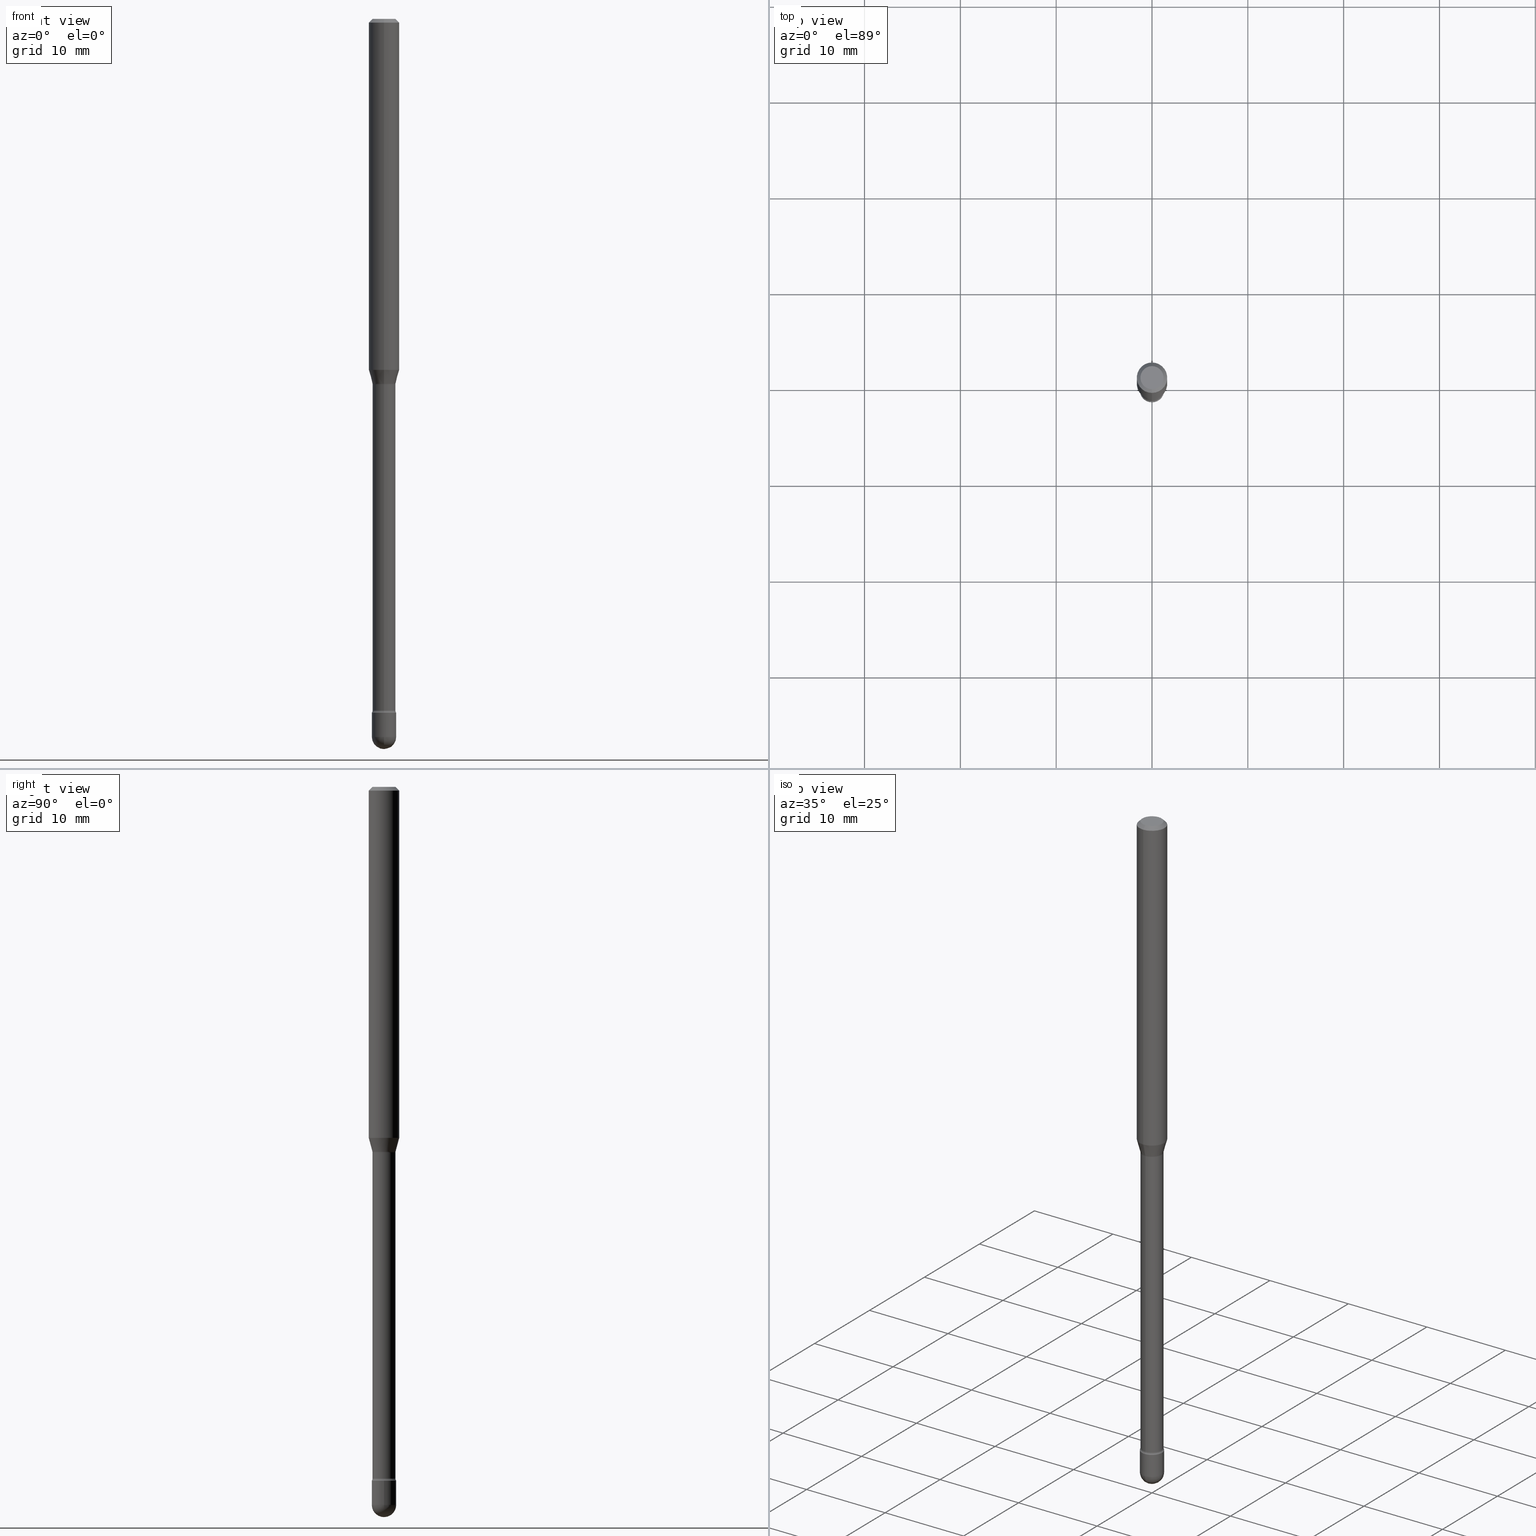
[diagram: canonical four-view strip — front | top / right | iso, engineering-drawing reading convention]
A machine part, canonical four-view strip (front | top / right | iso — engineering-drawing reading convention). The complete STEP part file that produces these views, byte-faithful:
ISO-10303-21;
HEADER;
FILE_DESCRIPTION (( 'STEP AP203' ),
    '1' );
FILE_NAME ('03936.STEP',
    '2024-04-09T21:17:18',
    ( '' ),
    ( '' ),
    'SwSTEP 2.0',
    'SolidWorks 2023',
    '' );
FILE_SCHEMA (( 'CONFIG_CONTROL_DESIGN' ));
ENDSEC;

DATA;
#1 = EDGE_CURVE ( 'NONE', #282, #555, #247, .T. ) ;
#2 = DIRECTION ( 'NONE',  ( 1.000000000000000000, -7.105427357601001070E-15, 4.926316345616424299E-29 ) ) ;
#3 = APPROVAL_ROLE ( '' ) ;
#4 = VERTEX_POINT ( 'NONE', #163 ) ;
#5 = ADVANCED_FACE ( 'NONE', ( #501 ), #382, .T. ) ;
#6 = DIRECTION ( 'NONE',  ( 7.105427357601001859E-15, 1.000000000000000000, 0.000000000000000000 ) ) ;
#7 = PERSON_AND_ORGANIZATION_ROLE ( 'design_supplier' ) ;
#8 = ORIENTED_EDGE ( 'NONE', *, *, #117, .F. ) ;
#9 = CIRCLE ( 'NONE', #470, 0.04700000000000000705 ) ;
#10 =( LENGTH_UNIT ( ) NAMED_UNIT ( * ) SI_UNIT ( $, .METRE. ) );
#11 = CARTESIAN_POINT ( 'NONE',  ( 7.214132978246153185E-29, -1.029986994958728126E-14, -2.950000000000000622 ) ) ;
#12 = EDGE_LOOP ( 'NONE', ( #481, #254, #491, #104 ) ) ;
#13 = ADVANCED_FACE ( 'NONE', ( #409 ), #548, .T. ) ;
#14 = PERSON_AND_ORGANIZATION ( #441, #261 ) ;
#15 = DIRECTION ( 'NONE',  ( -2.445468806185136877E-29, 3.491481338843145188E-15, 1.000000000000000000 ) ) ;
#16 = DIRECTION ( 'NONE',  ( -2.445421076024140334E-29, 3.491549691150324233E-15, 1.000000000000000000 ) ) ;
#17 = SPHERICAL_SURFACE ( 'NONE', #562, 0.04999999999999987094 ) ;
#18 = ORIENTED_EDGE ( 'NONE', *, *, #169, .T. ) ;
#19 = FACE_OUTER_BOUND ( 'NONE', #511, .T. ) ;
#20 = CC_DESIGN_PERSON_AND_ORGANIZATION_ASSIGNMENT ( #377, #372, ( #545 ) ) ;
#21 = CONICAL_SURFACE ( 'NONE', #138, 0.06250000000000000000, 0.7853981633974483900 ) ;
#22 = FACE_OUTER_BOUND ( 'NONE', #337, .T. ) ;
#23 = AXIS2_PLACEMENT_3D ( 'NONE', #165, #73, #342 ) ;
#24 = DIRECTION ( 'NONE',  ( 1.000000000000000000, -6.982962677686255667E-15, 0.000000000000000000 ) ) ;
#25 = CARTESIAN_POINT ( 'NONE',  ( 3.491481338843849247E-16, 0.04999999999998962913, -2.950000000000000622 ) ) ;
#26 = DIRECTION ( 'NONE',  ( -2.445421076024140334E-29, 3.491549691150324233E-15, 1.000000000000000000 ) ) ;
#27 = CARTESIAN_POINT ( 'NONE',  ( 0.000000000000000000, 0.000000000000000000, 0.000000000000000000 ) ) ;
#28 = CARTESIAN_POINT ( 'NONE',  ( 6.969586097627641094E-29, -9.950721815702966350E-15, -2.850000000000000533 ) ) ;
#29 = PERSON_AND_ORGANIZATION ( #441, #261 ) ;
#30 = ORIENTED_EDGE ( 'NONE', *, *, #1, .F. ) ;
#31 = CIRCLE ( 'NONE', #476, 0.05000000000000000278 ) ;
#32 = EDGE_CURVE ( 'NONE', #211, #385, #359, .T. ) ;
#33 = ORIENTED_EDGE ( 'NONE', *, *, #524, .T. ) ;
#34 = CC_DESIGN_DATE_AND_TIME_ASSIGNMENT ( #551, #113, ( #545 ) ) ;
#35 = ORIENTED_EDGE ( 'NONE', *, *, #133, .T. ) ;
#36 = VECTOR ( 'NONE', #453, 39.37007874015748143 ) ;
#37 = ADVANCED_FACE ( 'NONE', ( #495 ), #17, .T. ) ;
#38 = DATE_TIME_ROLE ( 'classification_date' ) ;
#39 = CARTESIAN_POINT ( 'NONE',  ( 6.947576878371974031E-29, -9.919298483653379286E-15, -2.841000000000000636 ) ) ;
#40 = ORIENTED_EDGE ( 'NONE', *, *, #245, .F. ) ;
#41 = AXIS2_PLACEMENT_3D ( 'NONE', #341, #253, #460 ) ;
#42 = AXIS2_PLACEMENT_3D ( 'NONE', #181, #528, #136 ) ;
#43 = CARTESIAN_POINT ( 'NONE',  ( 3.491481338843830018E-16, 0.04999999999999005240, -2.850000000000000533 ) ) ;
#44 = DIRECTION ( 'NONE',  ( -6.982962677686265922E-15, -1.000000000000000000, 3.491549691150324233E-15 ) ) ;
#45 = EDGE_CURVE ( 'NONE', #282, #251, #543, .T. ) ;
#46 = CARTESIAN_POINT ( 'NONE',  ( 3.668131614036230645E-31, -5.237324536725515192E-17, -0.01500000000000008271 ) ) ;
#47 = LINE ( 'NONE', #443, #556 ) ;
#48 = DIRECTION ( 'NONE',  ( -6.982962677686265133E-15, -1.000000000000000000, 0.000000000000000000 ) ) ;
#49 = CARTESIAN_POINT ( 'NONE',  ( 7.338544334278357981E-29, -1.047138239953157018E-14, -3.000000000000000444 ) ) ;
#50 = EDGE_LOOP ( 'NONE', ( #410, #383, #516, #183 ) ) ;
#51 = LINE ( 'NONE', #190, #36 ) ;
#52 = VECTOR ( 'NONE', #412, 39.37007874015748143 ) ;
#53 = AXIS2_PLACEMENT_3D ( 'NONE', #191, #407, #24 ) ;
#54 = DIRECTION ( 'NONE',  ( 2.445421076024140334E-29, -3.491549691150324233E-15, -1.000000000000000000 ) ) ;
#55 = DIRECTION ( 'NONE',  ( -2.445468806185136597E-29, 3.491481338843145583E-15, 1.000000000000000000 ) ) ;
#56 = ORIENTED_EDGE ( 'NONE', *, *, #497, .T. ) ;
#57 = ADVANCED_FACE ( 'NONE', ( #22 ), #498, .T. ) ;
#58 = DIRECTION ( 'NONE',  ( -2.445468806185136597E-29, 3.491481338843145583E-15, 1.000000000000000000 ) ) ;
#59 = CARTESIAN_POINT ( 'NONE',  ( -3.281992458512177725E-16, -0.04700000000000524591, -1.501974787463810967 ) ) ;
#60 = CARTESIAN_POINT ( 'NONE',  ( 3.526671860661072103E-29, -5.035349603635358334E-15, -1.442153212482682578 ) ) ;
#61 = CARTESIAN_POINT ( 'NONE',  ( -1.169113584055446105E-44, 1.669184350826100908E-30, 4.780733988912460139E-16 ) ) ;
#62 = AXIS2_PLACEMENT_3D ( 'NONE', #490, #281, #448 ) ;
#63 = CARTESIAN_POINT ( 'NONE',  ( -1.169113584055446105E-44, 1.669184350826100908E-30, 4.780733988912460139E-16 ) ) ;
#64 = CIRCLE ( 'NONE', #522, 0.01500000000000001853 ) ;
#65 = ORIENTED_EDGE ( 'NONE', *, *, #262, .T. ) ;
#66 = ADVANCED_FACE ( 'NONE', ( #215 ), #559, .F. ) ;
#67 = DIRECTION ( 'NONE',  ( 4.937700262164548042E-15, 0.7071067811865451302, -0.7071067811865499042 ) ) ;
#68 = DIRECTION ( 'NONE',  ( -2.438088387897960049E-29, 3.491481338843145188E-15, 1.000000000000000000 ) ) ;
#69 = CARTESIAN_POINT ( 'NONE',  ( 7.214132978246153185E-29, -1.029986994958728126E-14, -2.950000000000000622 ) ) ;
#70 = CALENDAR_DATE ( 2024, 9, 4 ) ;
#71 = ORIENTED_EDGE ( 'NONE', *, *, #303, .T. ) ;
#72 = DIRECTION ( 'NONE',  ( -6.982962677686265922E-15, -1.000000000000000000, 3.491549691150325021E-15 ) ) ;
#73 = DIRECTION ( 'NONE',  ( -2.445421076024140334E-29, 3.491549691150324233E-15, 1.000000000000000000 ) ) ;
#74 = ORIENTED_EDGE ( 'NONE', *, *, #420, .T. ) ;
#75 = ORIENTED_EDGE ( 'NONE', *, *, #508, .F. ) ;
#76 = ADVANCED_FACE ( 'NONE', ( #353 ), #487, .T. ) ;
#77 = ORIENTED_EDGE ( 'NONE', *, *, #364, .F. ) ;
#78 = CIRCLE ( 'NONE', #159, 0.04999999999999987094 ) ;
#79 = EDGE_CURVE ( 'NONE', #555, #277, #232, .T. ) ;
#80 = AXIS2_PLACEMENT_3D ( 'NONE', #496, #97, #275 ) ;
#81 = SECURITY_CLASSIFICATION ( '', '', #124 ) ;
#82 = PERSON_AND_ORGANIZATION_ROLE ( 'classification_officer' ) ;
#83 = DIRECTION ( 'NONE',  ( -2.445421076024140334E-29, 3.491549691150324233E-15, 1.000000000000000000 ) ) ;
#84 = ORIENTED_EDGE ( 'NONE', *, *, #264, .T. ) ;
#85 = CARTESIAN_POINT ( 'NONE',  ( 2.023205780527082896E-45, -2.889367155576668613E-31, -8.274378533695437826E-17 ) ) ;
#86 = DIRECTION ( 'NONE',  ( -6.982962677686265922E-15, -1.000000000000000000, 3.491549691150324233E-15 ) ) ;
#87 = AXIS2_PLACEMENT_3D ( 'NONE', #115, #450, #454 ) ;
#88 = AXIS2_PLACEMENT_3D ( 'NONE', #483, #329, #241 ) ;
#89 = DIRECTION ( 'NONE',  ( -2.445468806185136597E-29, 3.491481338843145583E-15, 1.000000000000000000 ) ) ;
#90 = CC_DESIGN_DATE_AND_TIME_ASSIGNMENT ( #436, #38, ( #81 ) ) ;
#91 = DIRECTION ( 'NONE',  ( -2.445421076024140334E-29, 3.491549691150324233E-15, 1.000000000000000000 ) ) ;
#92 = CARTESIAN_POINT ( 'NONE',  ( 3.668131614036230645E-31, -5.237324536725515192E-17, -0.01500000000000008271 ) ) ;
#93 = CARTESIAN_POINT ( 'NONE',  ( 6.969586097627641094E-29, -9.950721815702966350E-15, -2.850000000000000533 ) ) ;
#94 = ORIENTED_EDGE ( 'NONE', *, *, #524, .F. ) ;
#95 = DATE_AND_TIME ( #482, #168 ) ;
#96 = EDGE_CURVE ( 'NONE', #189, #4, #47, .T. ) ;
#97 = DIRECTION ( 'NONE',  ( -2.445421076024140334E-29, 3.491549691150324233E-15, 1.000000000000000000 ) ) ;
#98 = CARTESIAN_POINT ( 'NONE',  ( 3.663466977704329746E-29, -5.230664411929969971E-15, -1.498092501787273267 ) ) ;
#99 = ADVANCED_FACE ( 'NONE', ( #235 ), #348, .T. ) ;
#100 = AXIS2_PLACEMENT_3D ( 'NONE', #566, #173, #270 ) ;
#101 = CIRCLE ( 'NONE', #42, 0.01500000000000001853 ) ;
#102 = PERSON_AND_ORGANIZATION_ROLE ( 'design_owner' ) ;
#103 = CARTESIAN_POINT ( 'NONE',  ( -4.329436860164802286E-16, -0.06200000000001008871, -2.841000000000000636 ) ) ;
#104 = ORIENTED_EDGE ( 'NONE', *, *, #283, .F. ) ;
#105 = DIRECTION ( 'NONE',  ( -6.982962677686265133E-15, -1.000000000000000000, 3.491549691150322655E-15 ) ) ;
#106 = CARTESIAN_POINT ( 'NONE',  ( 3.339550858073170996E-16, 0.04699999999999476125, -1.501974787463811412 ) ) ;
#107 = ORIENTED_EDGE ( 'NONE', *, *, #425, .F. ) ;
#108 = CARTESIAN_POINT ( 'NONE',  ( -1.169113584055446105E-44, 1.669184350826100908E-30, 4.780733988912460139E-16 ) ) ;
#109 = VERTEX_POINT ( 'NONE', #182 ) ;
#110 = EDGE_CURVE ( 'NONE', #240, #376, #475, .T. ) ;
#111 = FACE_OUTER_BOUND ( 'NONE', #12, .T. ) ;
#112 = CIRCLE ( 'NONE', #493, 0.06250000000000000000 ) ;
#113 = DATE_TIME_ROLE ( 'creation_date' ) ;
#114 = ORIENTED_EDGE ( 'NONE', *, *, #45, .T. ) ;
#115 = CARTESIAN_POINT ( 'NONE',  ( 6.947441276984582983E-29, -9.919492672558074066E-15, -2.841000000000000636 ) ) ;
#116 = ORIENTED_EDGE ( 'NONE', *, *, #468, .T. ) ;
#117 = EDGE_CURVE ( 'NONE', #555, #259, #422, .T. ) ;
#118 = CIRCLE ( 'NONE', #62, 0.04999999999999987094 ) ;
#119 = CC_DESIGN_APPROVAL ( #531, ( #545 ) ) ;
#120 = ORIENTED_EDGE ( 'NONE', *, *, #164, .T. ) ;
#121 = EDGE_CURVE ( 'NONE', #300, #419, #492, .T. ) ;
#122 = ORIENTED_EDGE ( 'NONE', *, *, #375, .T. ) ;
#123 = EDGE_CURVE ( 'NONE', #282, #290, #149, .T. ) ;
#124 = SECURITY_CLASSIFICATION_LEVEL ( 'unclassified' ) ;
#125 = ORIENTED_EDGE ( 'NONE', *, *, #238, .T. ) ;
#126 = VECTOR ( 'NONE', #237, 39.37007874015748143 ) ;
#127 = ORIENTED_EDGE ( 'NONE', *, *, #364, .T. ) ;
#128 = FACE_OUTER_BOUND ( 'NONE', #421, .T. ) ;
#129 = DIRECTION ( 'NONE',  ( -2.445421076024140334E-29, 3.491549691150324233E-15, 1.000000000000000000 ) ) ;
#130 = ORIENTED_EDGE ( 'NONE', *, *, #464, .F. ) ;
#131 = LINE ( 'NONE', #451, #469 ) ;
#132 = PERSON_AND_ORGANIZATION ( #441, #261 ) ;
#133 = EDGE_CURVE ( 'NONE', #419, #434, #534, .T. ) ;
#134 = DIRECTION ( 'NONE',  ( 6.982962677686265922E-15, 1.000000000000000000, -3.491549691150324233E-15 ) ) ;
#135 = SHAPE_DEFINITION_REPRESENTATION ( #553, #346 ) ;
#136 = DIRECTION ( 'NONE',  ( 7.105427357600998703E-15, 1.000000000000000000, 0.000000000000000000 ) ) ;
#137 = EDGE_CURVE ( 'NONE', #513, #265, #370, .T. ) ;
#138 = AXIS2_PLACEMENT_3D ( 'NONE', #399, #538, #318 ) ;
#139 = CIRCLE ( 'NONE', #325, 0.04999999999999999584 ) ;
#140 = CARTESIAN_POINT ( 'NONE',  ( 3.840629472727447874E-16, 0.04749999999999999362, -2.485923956665947867E-16 ) ) ;
#141 = CARTESIAN_POINT ( 'NONE',  ( -0.04999999999999999584, 3.552713678800500634E-16, -2.459467545127452961E-30 ) ) ;
#142 = ORIENTED_EDGE ( 'NONE', *, *, #431, .T. ) ;
#143 = LINE ( 'NONE', #146, #369 ) ;
#144 = LINE ( 'NONE', #320, #126 ) ;
#145 = EDGE_CURVE ( 'NONE', #240, #211, #143, .T. ) ;
#146 = CARTESIAN_POINT ( 'NONE',  ( -3.317683261006645096E-16, -0.04751111260566922428, -1.498092501787273045 ) ) ;
#147 = ORIENTED_EDGE ( 'NONE', *, *, #245, .T. ) ;
#148 = CARTESIAN_POINT ( 'NONE',  ( -3.317683261006645096E-16, -0.04751111260566922428, -1.498092501787273045 ) ) ;
#149 = CIRCLE ( 'NONE', #312, 0.01500000000000001159 ) ;
#150 = AXIS2_PLACEMENT_3D ( 'NONE', #27, #239, #500 ) ;
#151 = PERSON_AND_ORGANIZATION ( #441, #261 ) ;
#152 = DIRECTION ( 'NONE',  ( 1.000000000000000000, -6.982962677686265922E-15, 4.876176775795935793E-29 ) ) ;
#153 = CYLINDRICAL_SURFACE ( 'NONE', #233, 0.06250000000000000000 ) ;
#154 = COORDINATED_UNIVERSAL_TIME_OFFSET ( 5, 0, .BEHIND. ) ;
#155 = CARTESIAN_POINT ( 'NONE',  ( 4.440892098500980163E-16, 0.06249999999999499706, -1.442153212482682800 ) ) ;
#156 = APPLICATION_PROTOCOL_DEFINITION ( 'international standard', 'config_control_design', 1994, #209 ) ;
#157 = DIRECTION ( 'NONE',  ( -6.982962677686265133E-15, -1.000000000000000000, 0.000000000000000000 ) ) ;
#158 = DIRECTION ( 'NONE',  ( -6.982962677686265922E-15, -1.000000000000000000, 5.749913744050246675E-15 ) ) ;
#159 = AXIS2_PLACEMENT_3D ( 'NONE', #248, #499, #380 ) ;
#160 = ORIENTED_EDGE ( 'NONE', *, *, #176, .T. ) ;
#161 = AXIS2_PLACEMENT_3D ( 'NONE', #401, #198, #544 ) ;
#162 = CARTESIAN_POINT ( 'NONE',  ( -4.329436860165117337E-16, -0.06200000000000524536, -1.501974787463810967 ) ) ;
#163 = CARTESIAN_POINT ( 'NONE',  ( 0.05000000000000000278, -1.029986994958727969E-14, -2.850000000000000533 ) ) ;
#164 = EDGE_CURVE ( 'NONE', #185, #246, #118, .T. ) ;
#165 = CARTESIAN_POINT ( 'NONE',  ( 3.672960800920882505E-29, -5.244219605284844182E-15, -1.501974787463811190 ) ) ;
#166 = AXIS2_PLACEMENT_3D ( 'NONE', #11, #58, #438 ) ;
#167 = DIMENSIONAL_EXPONENTS ( 1.000000000000000000, 0.000000000000000000, 0.000000000000000000, 0.000000000000000000, 0.000000000000000000, 0.000000000000000000, 0.000000000000000000 ) ;
#168 = LOCAL_TIME ( 17, 17, 18.00000000000000000, #180 ) ;
#169 = EDGE_CURVE ( 'NONE', #4, #434, #199, .T. ) ;
#170 = CLOSED_SHELL ( 'NONE', ( #309, #57, #324, #212, #472, #388, #99, #5, #486, #66, #515, #218, #423, #396 ) ) ;
#171 = AXIS2_PLACEMENT_3D ( 'NONE', #523, #83, #272 ) ;
#172 = DIRECTION ( 'NONE',  ( -4.851104656540964275E-15, -0.7071067811865500152, -0.7071067811865450192 ) ) ;
#173 = DIRECTION ( 'NONE',  ( -2.445421076024140334E-29, 3.491549691150324233E-15, 1.000000000000000000 ) ) ;
#174 = CARTESIAN_POINT ( 'NONE',  ( 3.673032490419300829E-29, -5.244116941842796689E-15, -1.501974787463811190 ) ) ;
#175 = EDGE_LOOP ( 'NONE', ( #332, #84, #347, #504 ) ) ;
#176 = EDGE_CURVE ( 'NONE', #189, #300, #267, .T. ) ;
#177 = ORIENTED_EDGE ( 'NONE', *, *, #164, .F. ) ;
#178 =( NAMED_UNIT ( * ) PLANE_ANGLE_UNIT ( ) SI_UNIT ( $, .RADIAN. ) );
#179 = DIRECTION ( 'NONE',  ( 2.445421076024140054E-29, -3.491549691150324233E-15, -1.000000000000000000 ) ) ;
#180 = COORDINATED_UNIVERSAL_TIME_OFFSET ( 5, 0, .BEHIND. ) ;
#181 = CARTESIAN_POINT ( 'NONE',  ( 4.405364961712988434E-16, 0.06199999999999476763, -1.501974787463811412 ) ) ;
#182 = CARTESIAN_POINT ( 'NONE',  ( -4.364351673553912750E-16, -0.06250000000000005551, -0.01499999999999986587 ) ) ;
#183 = ORIENTED_EDGE ( 'NONE', *, *, #238, .F. ) ;
#184 = COORDINATED_UNIVERSAL_TIME_OFFSET ( 5, 0, .BEHIND. ) ;
#185 = VERTEX_POINT ( 'NONE', #49 ) ;
#186 = AXIS2_PLACEMENT_3D ( 'NONE', #435, #2, #6 ) ;
#187 = ORIENTED_EDGE ( 'NONE', *, *, #32, .F. ) ;
#188 = DIRECTION ( 'NONE',  ( 1.000000000000000000, -6.982962677686254878E-15, 0.000000000000000000 ) ) ;
#189 = VERTEX_POINT ( 'NONE', #526 ) ;
#190 = CARTESIAN_POINT ( 'NONE',  ( -4.364351673553916201E-16, -0.06250000000000000000, 6.962952545881414017E-16 ) ) ;
#191 = CARTESIAN_POINT ( 'NONE',  ( 7.214132978246153185E-29, -1.029986994958728126E-14, -2.950000000000000622 ) ) ;
#192 = APPROVAL_DATE_TIME ( #404, #204 ) ;
#193 = DIRECTION ( 'NONE',  ( -2.445421076024140334E-29, 3.491549691150324233E-15, 1.000000000000000000 ) ) ;
#194 = CARTESIAN_POINT ( 'NONE',  ( -0.05000000000000000278, -9.770024514765074187E-15, -2.850000000000000533 ) ) ;
#195 = APPLICATION_PROTOCOL_DEFINITION ( 'international standard', 'config_control_design', 1994, #489 ) ;
#196 = DIRECTION ( 'NONE',  ( -1.000000000000000000, 6.982962677686266711E-15, -4.883557194083112901E-29 ) ) ;
#197 = ORIENTED_EDGE ( 'NONE', *, *, #176, .F. ) ;
#198 = DIRECTION ( 'NONE',  ( -2.445421076024140334E-29, 3.491549691150324233E-15, 1.000000000000000000 ) ) ;
#199 = CIRCLE ( 'NONE', #512, 0.05000000000000000278 ) ;
#200 = FACE_OUTER_BOUND ( 'NONE', #227, .T. ) ;
#201 = DIRECTION ( 'NONE',  ( -1.000000000000000000, 6.982962677686265922E-15, -4.883557194083112340E-29 ) ) ;
#202 = AXIS2_PLACEMENT_3D ( 'NONE', #61, #16, #105 ) ;
#203 = ORIENTED_EDGE ( 'NONE', *, *, #560, .T. ) ;
#204 = APPROVAL ( #462, 'UNSPECIFIED' ) ;
#205 = CARTESIAN_POINT ( 'NONE',  ( 2.023205780527082896E-45, -2.889367155576668613E-31, -8.274378533695437826E-17 ) ) ;
#206 = CARTESIAN_POINT ( 'NONE',  ( -3.281992458511861195E-16, -0.04700000000001007538, -2.841000000000000636 ) ) ;
#207 = APPROVAL_DATE_TIME ( #418, #531 ) ;
#208 = DIRECTION ( 'NONE',  ( -6.982962677686265922E-15, -1.000000000000000000, 4.370956789862821150E-15 ) ) ;
#209 = APPLICATION_CONTEXT ( 'configuration controlled 3d designs of mechanical parts and assemblies' ) ;
#210 = AXIS2_PLACEMENT_3D ( 'NONE', #63, #455, #250 ) ;
#211 = VERTEX_POINT ( 'NONE', #351 ) ;
#212 = ADVANCED_FACE ( 'NONE', ( #361 ), #21, .T. ) ;
#213 = AXIS2_PLACEMENT_3D ( 'NONE', #46, #54, #314 ) ;
#214 = ORIENTED_EDGE ( 'NONE', *, *, #510, .F. ) ;
#215 = FACE_OUTER_BOUND ( 'NONE', #224, .T. ) ;
#216 = ORIENTED_EDGE ( 'NONE', *, *, #110, .F. ) ;
#217 = EDGE_LOOP ( 'NONE', ( #130, #74, #398, #424 ) ) ;
#218 = ADVANCED_FACE ( 'NONE', ( #266 ), #344, .F. ) ;
#219 = EDGE_LOOP ( 'NONE', ( #229, #120, #77, #445 ) ) ;
#220 = CARTESIAN_POINT ( 'NONE',  ( 3.446132268437187104E-16, 0.04699999999999023709, -2.841000000000000636 ) ) ;
#221 = CC_DESIGN_PERSON_AND_ORGANIZATION_ASSIGNMENT ( #151, #102, ( #463 ) ) ;
#222 = APPROVAL_STATUS ( 'not_yet_approved' ) ;
#223 = AXIS2_PLACEMENT_3D ( 'NONE', #306, #263, #427 ) ;
#224 = EDGE_LOOP ( 'NONE', ( #444, #71 ) ) ;
#225 =( CONVERSION_BASED_UNIT ( 'INCH', #429 ) LENGTH_UNIT ( ) NAMED_UNIT ( #167 ) );
#226 = DIRECTION ( 'NONE',  ( -6.982962677686265922E-15, -1.000000000000000000, 3.491549691150324233E-15 ) ) ;
#227 = EDGE_LOOP ( 'NONE', ( #339, #319, #214, #107 ) ) ;
#228 = DIRECTION ( 'NONE',  ( -2.445421076024140334E-29, 3.491549691150324233E-15, 1.000000000000000000 ) ) ;
#229 = ORIENTED_EDGE ( 'NONE', *, *, #262, .F. ) ;
#230 = APPROVAL ( #222, 'UNSPECIFIED' ) ;
#231 = DIRECTION ( 'NONE',  ( -2.445421076024140054E-29, 3.491549691150324233E-15, 1.000000000000000000 ) ) ;
#232 = LINE ( 'NONE', #392, #386 ) ;
#233 = AXIS2_PLACEMENT_3D ( 'NONE', #108, #286, #72 ) ;
#234 = CARTESIAN_POINT ( 'NONE',  ( 6.969450066668801213E-29, -9.950916619778426528E-15, -2.850000000000000533 ) ) ;
#235 = FACE_OUTER_BOUND ( 'NONE', #175, .T. ) ;
#236 = FACE_OUTER_BOUND ( 'NONE', #537, .T. ) ;
#237 = DIRECTION ( 'NONE',  ( -2.445421076024140334E-29, 3.491549691150324233E-15, 1.000000000000000000 ) ) ;
#238 = EDGE_CURVE ( 'NONE', #513, #355, #131, .T. ) ;
#239 = DIRECTION ( 'NONE',  ( 0.000000000000000000, 0.000000000000000000, 1.000000000000000000 ) ) ;
#240 = VERTEX_POINT ( 'NONE', #148 ) ;
#241 = DIRECTION ( 'NONE',  ( -6.982962677686265922E-15, -1.000000000000000000, 3.491549691150324233E-15 ) ) ;
#242 = CARTESIAN_POINT ( 'NONE',  ( -3.773273898774340269E-16, -0.04749999999999999362, 8.310482499268601786E-17 ) ) ;
#243 = CARTESIAN_POINT ( 'NONE',  ( -3.281992458512550462E-16, -0.04700000000000008338, 6.421762343753115033E-16 ) ) ;
#244 = CARTESIAN_POINT ( 'NONE',  ( 6.969450066668801213E-29, -9.950916619778426528E-15, -2.850000000000000533 ) ) ;
#245 = EDGE_CURVE ( 'NONE', #555, #282, #334, .T. ) ;
#246 = VERTEX_POINT ( 'NONE', #408 ) ;
#247 = CIRCLE ( 'NONE', #296, 0.04700000000000015971 ) ;
#248 = CARTESIAN_POINT ( 'NONE',  ( 7.214132978246153185E-29, -1.029986994958728126E-14, -2.950000000000000622 ) ) ;
#249 = CONICAL_SURFACE ( 'NONE', #213, 0.06250000000000000000, 0.7853981633974483900 ) ;
#250 = DIRECTION ( 'NONE',  ( -6.982962677686265133E-15, -1.000000000000000000, 3.491549691150322655E-15 ) ) ;
#251 = VERTEX_POINT ( 'NONE', #59 ) ;
#252 = EDGE_LOOP ( 'NONE', ( #298, #127, #116, #484, #94 ) ) ;
#253 = DIRECTION ( 'NONE',  ( -2.445421076024140334E-29, 3.491549691150324233E-15, 1.000000000000000000 ) ) ;
#254 = ORIENTED_EDGE ( 'NONE', *, *, #343, .T. ) ;
#255 = CARTESIAN_POINT ( 'NONE',  ( 3.908379845742406509E-16, 0.04751111260565876043, -1.498092501787273489 ) ) ;
#256 = AXIS2_PLACEMENT_3D ( 'NONE', #276, #55, #357 ) ;
#257 = ORIENTED_EDGE ( 'NONE', *, *, #79, .F. ) ;
#258 = PRODUCT_RELATED_PRODUCT_CATEGORY ( 'detail', '', ( #463 ) ) ;
#259 = VERTEX_POINT ( 'NONE', #365 ) ;
#260 = AXIS2_PLACEMENT_3D ( 'NONE', #60, #26, #208 ) ;
#261 = ORGANIZATION ( 'UNSPECIFIED', 'UNSPECIFIED', '' ) ;
#262 = EDGE_CURVE ( 'NONE', #185, #300, #78, .T. ) ;
#263 = DIRECTION ( 'NONE',  ( -2.445468806185136597E-29, 3.491481338843145583E-15, 1.000000000000000000 ) ) ;
#264 = EDGE_CURVE ( 'NONE', #376, #240, #297, .T. ) ;
#265 = VERTEX_POINT ( 'NONE', #242 ) ;
#266 = FACE_OUTER_BOUND ( 'NONE', #284, .T. ) ;
#267 = CIRCLE ( 'NONE', #166, 0.04999999999999999584 ) ;
#268 = CARTESIAN_POINT ( 'NONE',  ( 7.214132978246153185E-29, -1.029986994958728126E-14, -2.950000000000000622 ) ) ;
#269 = CONICAL_SURFACE ( 'NONE', #161, 0.04751111260566399236, 0.2617993877991497409 ) ;
#270 = DIRECTION ( 'NONE',  ( -6.982962677686265922E-15, -1.000000000000000000, 5.749913744050246675E-15 ) ) ;
#271 = CC_DESIGN_PERSON_AND_ORGANIZATION_ASSIGNMENT ( #29, #519, ( #416 ) ) ;
#272 = DIRECTION ( 'NONE',  ( -6.982962677686265922E-15, -1.000000000000000000, 3.483106191921935554E-15 ) ) ;
#273 = DIRECTION ( 'NONE',  ( -2.445468806185136597E-29, 3.491481338843145583E-15, 1.000000000000000000 ) ) ;
#274 = ORIENTED_EDGE ( 'NONE', *, *, #137, .F. ) ;
#275 = DIRECTION ( 'NONE',  ( -6.982962677686265922E-15, -1.000000000000000000, 4.370956789862821150E-15 ) ) ;
#276 = CARTESIAN_POINT ( 'NONE',  ( 7.214132978246153185E-29, -1.029986994958728126E-14, -2.950000000000000622 ) ) ;
#277 = VERTEX_POINT ( 'NONE', #106 ) ;
#278 = AXIS2_PLACEMENT_3D ( 'NONE', #477, #179, #134 ) ;
#279 = TOROIDAL_SURFACE ( 'NONE', #313, 0.06200000000000000649, 0.01500000000000001853 ) ;
#280 = APPROVAL_PERSON_ORGANIZATION ( #354, #230, #3 ) ;
#281 = DIRECTION ( 'NONE',  ( -1.000000000000000000, 7.105427357601001070E-15, -4.926315508542082329E-29 ) ) ;
#282 = VERTEX_POINT ( 'NONE', #206 ) ;
#283 = EDGE_CURVE ( 'NONE', #240, #251, #64, .T. ) ;
#284 = EDGE_LOOP ( 'NONE', ( #8, #30, #550, #142 ) ) ;
#285 = CYLINDRICAL_SURFACE ( 'NONE', #202, 0.04700000000000008338 ) ;
#286 = DIRECTION ( 'NONE',  ( -2.445421076024140334E-29, 3.491549691150324233E-15, 1.000000000000000000 ) ) ;
#287 = ORIENTED_EDGE ( 'NONE', *, *, #117, .T. ) ;
#288 = CIRCLE ( 'NONE', #223, 0.05000000000000000278 ) ;
#289 = APPROVAL_STATUS ( 'not_yet_approved' ) ;
#290 = VERTEX_POINT ( 'NONE', #461 ) ;
#291 = ORIENTED_EDGE ( 'NONE', *, *, #384, .T. ) ;
#292 = CC_DESIGN_PERSON_AND_ORGANIZATION_ASSIGNMENT ( #132, #7, ( #416 ) ) ;
#293 = CARTESIAN_POINT ( 'NONE',  ( 3.663466977704329746E-29, -5.230664411929969971E-15, -1.498092501787273267 ) ) ;
#294 = CARTESIAN_POINT ( 'NONE',  ( 6.947441276984582983E-29, -9.919492672558074066E-15, -2.841000000000000636 ) ) ;
#295 = ORIENTED_EDGE ( 'NONE', *, *, #45, .F. ) ;
#296 = AXIS2_PLACEMENT_3D ( 'NONE', #294, #331, #157 ) ;
#297 = CIRCLE ( 'NONE', #503, 0.04751111260566399236 ) ;
#298 = ORIENTED_EDGE ( 'NONE', *, *, #133, .F. ) ;
#299 = ADVANCED_FACE ( 'NONE', ( #417 ), #340, .T. ) ;
#300 = VERTEX_POINT ( 'NONE', #25 ) ;
#301 = DIRECTION ( 'NONE',  ( 1.839019923739596765E-15, 0.2588190451025244587, 0.9659258262890673130 ) ) ;
#302 = AXIS2_PLACEMENT_3D ( 'NONE', #69, #546, #330 ) ;
#303 = EDGE_CURVE ( 'NONE', #265, #513, #557, .T. ) ;
#304 = DIRECTION ( 'NONE',  ( -6.982962677686265922E-15, -1.000000000000000000, 3.491549691150324233E-15 ) ) ;
#305 = ORIENTED_EDGE ( 'NONE', *, *, #343, .F. ) ;
#306 = CARTESIAN_POINT ( 'NONE',  ( 6.969586097627641094E-29, -9.950721815702966350E-15, -2.850000000000000533 ) ) ;
#307 = CARTESIAN_POINT ( 'NONE',  ( 6.947576878371974031E-29, -9.919298483653379286E-15, -2.841000000000000636 ) ) ;
#308 = DIRECTION ( 'NONE',  ( -2.445421076024140334E-29, 3.491549691150324233E-15, 1.000000000000000000 ) ) ;
#309 = ADVANCED_FACE ( 'NONE', ( #111 ), #279, .F. ) ;
#310 =( NAMED_UNIT ( * ) SI_UNIT ( $, .STERADIAN. ) SOLID_ANGLE_UNIT ( ) );
#311 = DIRECTION ( 'NONE',  ( -2.445468806185136877E-29, 3.491481338843145188E-15, 1.000000000000000000 ) ) ;
#312 = AXIS2_PLACEMENT_3D ( 'NONE', #103, #473, #480 ) ;
#313 = AXIS2_PLACEMENT_3D ( 'NONE', #174, #308, #226 ) ;
#314 = DIRECTION ( 'NONE',  ( 6.982962677686265922E-15, 1.000000000000000000, -3.483106191921935554E-15 ) ) ;
#315 = DIRECTION ( 'NONE',  ( -1.807323732225326589E-15, -0.2588190451025176864, 0.9659258262890690894 ) ) ;
#316 = ORIENTED_EDGE ( 'NONE', *, *, #123, .F. ) ;
#317 = CYLINDRICAL_SURFACE ( 'NONE', #415, 0.04999999999999999584 ) ;
#318 = DIRECTION ( 'NONE',  ( 6.982962677686265922E-15, 1.000000000000000000, -3.483106191921935554E-15 ) ) ;
#319 = ORIENTED_EDGE ( 'NONE', *, *, #464, .T. ) ;
#320 = CARTESIAN_POINT ( 'NONE',  ( 4.440892098500625669E-16, 0.06250000000000000000, 2.598515431943507740E-16 ) ) ;
#321 = MECHANICAL_CONTEXT ( 'NONE', #209, 'mechanical' ) ;
#322 = CARTESIAN_POINT ( 'NONE',  ( 0.000000000000000000, 0.000000000000000000, 0.000000000000000000 ) ) ;
#323 = ORIENTED_EDGE ( 'NONE', *, *, #1, .T. ) ;
#324 = ADVANCED_FACE ( 'NONE', ( #352 ), #381, .F. ) ;
#325 = AXIS2_PLACEMENT_3D ( 'NONE', #268, #433, #394 ) ;
#326 = APPROVAL_PERSON_ORGANIZATION ( #506, #204, #327 ) ;
#327 = APPROVAL_ROLE ( '' ) ;
#328 = ORIENTED_EDGE ( 'NONE', *, *, #283, .T. ) ;
#329 = DIRECTION ( 'NONE',  ( -2.445421076024140334E-29, 3.491549691150324233E-15, 1.000000000000000000 ) ) ;
#330 = DIRECTION ( 'NONE',  ( 6.982962677686266711E-15, 1.000000000000000000, 0.000000000000000000 ) ) ;
#331 = DIRECTION ( 'NONE',  ( -2.445421076024140334E-29, 3.491549691150324233E-15, 1.000000000000000000 ) ) ;
#332 = ORIENTED_EDGE ( 'NONE', *, *, #384, .F. ) ;
#333 = CC_DESIGN_PERSON_AND_ORGANIZATION_ASSIGNMENT ( #393, #82, ( #81 ) ) ;
#334 = CIRCLE ( 'NONE', #87, 0.04700000000000015971 ) ;
#335 = DIRECTION ( 'NONE',  ( -2.445421076024140334E-29, 3.491549691150324233E-15, 1.000000000000000000 ) ) ;
#336 = APPROVAL_PERSON_ORGANIZATION ( #14, #531, #459 ) ;
#337 = EDGE_LOOP ( 'NONE', ( #323, #530, #541, #295 ) ) ;
#338 = UNCERTAINTY_MEASURE_WITH_UNIT (LENGTH_MEASURE( 1.000000000000000082E-05 ), #225, 'distance_accuracy_value', 'NONE');
#339 = ORIENTED_EDGE ( 'NONE', *, *, #32, .T. ) ;
#340 = SPHERICAL_SURFACE ( 'NONE', #302, 0.04999999999999987094 ) ;
#341 = CARTESIAN_POINT ( 'NONE',  ( -1.169113584055446105E-44, 1.669184350826100908E-30, 4.780733988912460139E-16 ) ) ;
#342 = DIRECTION ( 'NONE',  ( -6.982962677686265922E-15, -1.000000000000000000, 5.812442539711197800E-15 ) ) ;
#343 = EDGE_CURVE ( 'NONE', #376, #277, #101, .T. ) ;
#344 = TOROIDAL_SURFACE ( 'NONE', #457, 0.06200000000000016609, 0.01500000000000001332 ) ;
#345 = AXIS2_PLACEMENT_3D ( 'NONE', #205, #374, #549 ) ;
#346 = ADVANCED_BREP_SHAPE_REPRESENTATION ( '03936', ( #525, #518, #150 ), #390 ) ;
#347 = ORIENTED_EDGE ( 'NONE', *, *, #145, .T. ) ;
#348 = CONICAL_SURFACE ( 'NONE', #552, 0.04751111260566399236, 0.2617993877991497409 ) ;
#349 = CARTESIAN_POINT ( 'NONE',  ( -4.287811248607203282E-16, -0.06250000000000005551, -0.01499999999999986587 ) ) ;
#350 = TOROIDAL_SURFACE ( 'NONE', #88, 0.06200000000000000649, 0.01500000000000001853 ) ;
#351 = CARTESIAN_POINT ( 'NONE',  ( -4.364351673553561707E-16, -0.06250000000000500988, -1.442153212482682356 ) ) ;
#352 = FACE_OUTER_BOUND ( 'NONE', #439, .T. ) ;
#353 = FACE_OUTER_BOUND ( 'NONE', #467, .T. ) ;
#354 = PERSON_AND_ORGANIZATION ( #441, #261 ) ;
#355 = VERTEX_POINT ( 'NONE', #474 ) ;
#356 = DIRECTION ( 'NONE',  ( -2.445421076024140334E-29, 3.491549691150324233E-15, 1.000000000000000000 ) ) ;
#357 = DIRECTION ( 'NONE',  ( 1.000000000000000000, -6.982962677686255667E-15, 0.000000000000000000 ) ) ;
#358 = CALENDAR_DATE ( 2024, 9, 4 ) ;
#359 = CIRCLE ( 'NONE', #260, 0.06250000000000000000 ) ;
#360 = CIRCLE ( 'NONE', #171, 0.06250000000000000000 ) ;
#361 = FACE_OUTER_BOUND ( 'NONE', #50, .T. ) ;
#362 = DIRECTION ( 'NONE',  ( 1.000000000000000000, -6.982962677686265922E-15, 4.876176775795936353E-29 ) ) ;
#363 = DIRECTION ( 'NONE',  ( 1.000000000000000000, -6.982962677686265922E-15, 4.876176775795936353E-29 ) ) ;
#364 = EDGE_CURVE ( 'NONE', #419, #246, #139, .T. ) ;
#365 = CARTESIAN_POINT ( 'NONE',  ( 3.552713678801198282E-16, 0.04999999999999005934, -2.850000000000000533 ) ) ;
#366 = COORDINATED_UNIVERSAL_TIME_OFFSET ( 5, 0, .BEHIND. ) ;
#367 = DIRECTION ( 'NONE',  ( 6.982962677686266711E-15, 1.000000000000000000, 0.000000000000000000 ) ) ;
#368 = CARTESIAN_POINT ( 'NONE',  ( -0.04999999999999999584, -9.770024514765074187E-15, -2.950000000000000622 ) ) ;
#369 = VECTOR ( 'NONE', #315, 39.37007874015748854 ) ;
#370 = CIRCLE ( 'NONE', #502, 0.04749999999999999362 ) ;
#371 = LOCAL_TIME ( 17, 17, 18.00000000000000000, #366 ) ;
#372 = PERSON_AND_ORGANIZATION_ROLE ( 'creator' ) ;
#373 = ORIENTED_EDGE ( 'NONE', *, *, #96, .F. ) ;
#374 = DIRECTION ( 'NONE',  ( -2.445421076024140334E-29, 3.491549691150324233E-15, 1.000000000000000000 ) ) ;
#375 = EDGE_CURVE ( 'NONE', #251, #277, #563, .T. ) ;
#376 = VERTEX_POINT ( 'NONE', #255 ) ;
#377 = PERSON_AND_ORGANIZATION ( #441, #261 ) ;
#378 = CARTESIAN_POINT ( 'NONE',  ( 7.214132978246153185E-29, -1.029986994958728126E-14, -2.950000000000000622 ) ) ;
#379 = CLOSED_SHELL ( 'NONE', ( #76, #299, #13, #37, #414 ) ) ;
#380 = DIRECTION ( 'NONE',  ( 6.982962677686265922E-15, 1.000000000000000000, 0.000000000000000000 ) ) ;
#381 = TOROIDAL_SURFACE ( 'NONE', #387, 0.06200000000000016609, 0.01500000000000001332 ) ;
#382 = CYLINDRICAL_SURFACE ( 'NONE', #41, 0.06250000000000000000 ) ;
#383 = ORIENTED_EDGE ( 'NONE', *, *, #508, .T. ) ;
#384 = EDGE_CURVE ( 'NONE', #376, #385, #554, .T. ) ;
#385 = VERTEX_POINT ( 'NONE', #155 ) ;
#386 = VECTOR ( 'NONE', #228, 39.37007874015748143 ) ;
#387 = AXIS2_PLACEMENT_3D ( 'NONE', #39, #129, #86 ) ;
#388 = ADVANCED_FACE ( 'NONE', ( #236 ), #269, .T. ) ;
#389 = DIRECTION ( 'NONE',  ( -6.982962677686265922E-15, -1.000000000000000000, 3.483106191921935554E-15 ) ) ;
#390 =( GEOMETRIC_REPRESENTATION_CONTEXT ( 3 ) GLOBAL_UNCERTAINTY_ASSIGNED_CONTEXT ( ( #338 ) ) GLOBAL_UNIT_ASSIGNED_CONTEXT ( ( #225, #178, #310 ) ) REPRESENTATION_CONTEXT ( 'NONE', 'WORKASPACE' ) );
#391 = ORIENTED_EDGE ( 'NONE', *, *, #121, .T. ) ;
#392 = CARTESIAN_POINT ( 'NONE',  ( 3.339550858072475812E-16, 0.04700000000000008338, 3.139705634071805245E-16 ) ) ;
#393 = PERSON_AND_ORGANIZATION ( #441, #261 ) ;
#394 = DIRECTION ( 'NONE',  ( 1.000000000000000000, -6.982962677686255667E-15, 0.000000000000000000 ) ) ;
#395 = ORIENTED_EDGE ( 'NONE', *, *, #468, .F. ) ;
#396 = ADVANCED_FACE ( 'NONE', ( #19 ), #350, .F. ) ;
#397 = DIRECTION ( 'NONE',  ( -2.445421076024140334E-29, 3.491549691150324233E-15, 1.000000000000000000 ) ) ;
#398 = ORIENTED_EDGE ( 'NONE', *, *, #425, .T. ) ;
#399 = CARTESIAN_POINT ( 'NONE',  ( 3.668131614036230645E-31, -5.237324536725515192E-17, -0.01500000000000008271 ) ) ;
#400 = ORIENTED_EDGE ( 'NONE', *, *, #403, .F. ) ;
#401 = CARTESIAN_POINT ( 'NONE',  ( 3.663466977704329746E-29, -5.230664411929969971E-15, -1.498092501787273267 ) ) ;
#402 = CIRCLE ( 'NONE', #466, 0.05000000000000000278 ) ;
#403 = EDGE_CURVE ( 'NONE', #277, #251, #9, .T. ) ;
#404 = DATE_AND_TIME ( #70, #564 ) ;
#405 = DIRECTION ( 'NONE',  ( -6.982962677686265922E-15, -1.000000000000000000, 5.749913744050246675E-15 ) ) ;
#406 = DIRECTION ( 'NONE',  ( -2.445468806185136597E-29, 3.491481338843145583E-15, 1.000000000000000000 ) ) ;
#407 = DIRECTION ( 'NONE',  ( -2.445468806185136597E-29, 3.491481338843145583E-15, 1.000000000000000000 ) ) ;
#408 = CARTESIAN_POINT ( 'NONE',  ( -3.552713678799773895E-16, -0.05000000000001022377, -2.950000000000000622 ) ) ;
#409 = FACE_OUTER_BOUND ( 'NONE', #520, .T. ) ;
#410 = ORIENTED_EDGE ( 'NONE', *, *, #303, .F. ) ;
#411 = CARTESIAN_POINT ( 'NONE',  ( 0.000000000000000000, 0.000000000000000000, 0.000000000000000000 ) ) ;
#412 = DIRECTION ( 'NONE',  ( -2.445421076024140334E-29, 3.491549691150324233E-15, 1.000000000000000000 ) ) ;
#413 = DIRECTION ( 'NONE',  ( -6.982962677686265133E-15, -1.000000000000000000, 0.000000000000000000 ) ) ;
#414 = ADVANCED_FACE ( 'NONE', ( #437 ), #317, .T. ) ;
#415 = AXIS2_PLACEMENT_3D ( 'NONE', #411, #406, #362 ) ;
#416 = PRODUCT_DEFINITION_FORMATION_WITH_SPECIFIED_SOURCE ( 'ANY', '', #463, .NOT_KNOWN. ) ;
#417 = FACE_OUTER_BOUND ( 'NONE', #219, .T. ) ;
#418 = DATE_AND_TIME ( #494, #371 ) ;
#419 = VERTEX_POINT ( 'NONE', #368 ) ;
#420 = EDGE_CURVE ( 'NONE', #385, #211, #514, .T. ) ;
#421 = EDGE_LOOP ( 'NONE', ( #488, #561 ) ) ;
#422 = CIRCLE ( 'NONE', #186, 0.01500000000000001159 ) ;
#423 = ADVANCED_FACE ( 'NONE', ( #440 ), #285, .T. ) ;
#424 = ORIENTED_EDGE ( 'NONE', *, *, #560, .F. ) ;
#425 = EDGE_CURVE ( 'NONE', #211, #109, #51, .T. ) ;
#426 = AXIS2_PLACEMENT_3D ( 'NONE', #28, #68, #152 ) ;
#427 = DIRECTION ( 'NONE',  ( 1.000000000000000000, -6.982962677686254878E-15, 0.000000000000000000 ) ) ;
#428 = VECTOR ( 'NONE', #172, 39.37007874015748143 ) ;
#429 = LENGTH_MEASURE_WITH_UNIT ( LENGTH_MEASURE( 0.02539999999999999897 ), #10 );
#430 = DIRECTION ( 'NONE',  ( -2.445421076024140334E-29, 3.491549691150324233E-15, 1.000000000000000000 ) ) ;
#431 = EDGE_CURVE ( 'NONE', #290, #259, #402, .T. ) ;
#432 = LOCAL_TIME ( 17, 17, 18.00000000000000000, #542 ) ;
#433 = DIRECTION ( 'NONE',  ( -2.445468806185136597E-29, 3.491481338843145583E-15, 1.000000000000000000 ) ) ;
#434 = VERTEX_POINT ( 'NONE', #194 ) ;
#435 = CARTESIAN_POINT ( 'NONE',  ( 4.405364961713327151E-16, 0.06199999999999025041, -2.841000000000000636 ) ) ;
#436 = DATE_AND_TIME ( #358, #471 ) ;
#437 = FACE_OUTER_BOUND ( 'NONE', #252, .T. ) ;
#438 = DIRECTION ( 'NONE',  ( 1.000000000000000000, -6.982962677686255667E-15, 0.000000000000000000 ) ) ;
#439 = EDGE_LOOP ( 'NONE', ( #40, #287, #56, #316 ) ) ;
#440 = FACE_OUTER_BOUND ( 'NONE', #485, .T. ) ;
#441 = PERSON ( 'UNSPECIFIED', 'UNSPECIFIED', 'UNSPECIFIED', ('UNSPECIFIED'), ('UNSPECIFIED'), ('UNSPECIFIED') ) ;
#442 = FACE_OUTER_BOUND ( 'NONE', #529, .T. ) ;
#443 = CARTESIAN_POINT ( 'NONE',  ( 0.04999999999999999584, -3.491481338843132862E-16, 2.438088387897967896E-30 ) ) ;
#444 = ORIENTED_EDGE ( 'NONE', *, *, #137, .T. ) ;
#445 = ORIENTED_EDGE ( 'NONE', *, *, #121, .F. ) ;
#446 = CIRCLE ( 'NONE', #53, 0.04999999999999999584 ) ;
#447 = CC_DESIGN_SECURITY_CLASSIFICATION ( #81, ( #416 ) ) ;
#448 = DIRECTION ( 'NONE',  ( -7.105427357600999492E-15, -1.000000000000000000, 0.000000000000000000 ) ) ;
#449 = DIRECTION ( 'NONE',  ( -6.982962677686265922E-15, -1.000000000000000000, 5.812442539711197800E-15 ) ) ;
#450 = DIRECTION ( 'NONE',  ( -2.445421076024140334E-29, 3.491549691150324233E-15, 1.000000000000000000 ) ) ;
#451 = CARTESIAN_POINT ( 'NONE',  ( 4.364351673553919652E-16, 0.06249999999999995143, -0.01500000000000030129 ) ) ;
#452 = ORIENTED_EDGE ( 'NONE', *, *, #145, .F. ) ;
#453 = DIRECTION ( 'NONE',  ( -2.445421076024140334E-29, 3.491549691150324233E-15, 1.000000000000000000 ) ) ;
#454 = DIRECTION ( 'NONE',  ( -6.982962677686265133E-15, -1.000000000000000000, 0.000000000000000000 ) ) ;
#455 = DIRECTION ( 'NONE',  ( -2.445421076024140334E-29, 3.491549691150324233E-15, 1.000000000000000000 ) ) ;
#456 = ORIENTED_EDGE ( 'NONE', *, *, #169, .F. ) ;
#457 = AXIS2_PLACEMENT_3D ( 'NONE', #307, #430, #44 ) ;
#458 = VECTOR ( 'NONE', #301, 39.37007874015748143 ) ;
#459 = APPROVAL_ROLE ( '' ) ;
#460 = DIRECTION ( 'NONE',  ( -6.982962677686265922E-15, -1.000000000000000000, 3.491549691150325021E-15 ) ) ;
#461 = CARTESIAN_POINT ( 'NONE',  ( -3.491481338842437186E-16, -0.05000000000000996703, -2.850000000000000533 ) ) ;
#462 = APPROVAL_STATUS ( 'not_yet_approved' ) ;
#463 = PRODUCT ( '03936', '03936', '', ( #321 ) ) ;
#464 = EDGE_CURVE ( 'NONE', #385, #355, #144, .T. ) ;
#465 = VECTOR ( 'NONE', #15, 39.37007874015748143 ) ;
#466 = AXIS2_PLACEMENT_3D ( 'NONE', #244, #539, #413 ) ;
#467 = EDGE_LOOP ( 'NONE', ( #391, #35, #456, #373, #160 ) ) ;
#468 = EDGE_CURVE ( 'NONE', #246, #189, #446, .T. ) ;
#469 = VECTOR ( 'NONE', #67, 39.37007874015748143 ) ;
#470 = AXIS2_PLACEMENT_3D ( 'NONE', #536, #91, #449 ) ;
#471 = LOCAL_TIME ( 17, 17, 18.00000000000000000, #184 ) ;
#472 = ADVANCED_FACE ( 'NONE', ( #200 ), #153, .T. ) ;
#473 = DIRECTION ( 'NONE',  ( -1.000000000000000000, 6.982962677686265922E-15, -4.883557194083112340E-29 ) ) ;
#474 = CARTESIAN_POINT ( 'NONE',  ( 4.440892098500981149E-16, 0.06249999999999995837, -0.01500000000000030129 ) ) ;
#475 = CIRCLE ( 'NONE', #100, 0.04751111260566399236 ) ;
#476 = AXIS2_PLACEMENT_3D ( 'NONE', #234, #356, #48 ) ;
#477 = CARTESIAN_POINT ( 'NONE',  ( 3.316907271900976096E-16, 0.04749999999999999362, 3.181619644750544020E-17 ) ) ;
#478 = CC_DESIGN_APPROVAL ( #230, ( #81 ) ) ;
#479 = PLANE ( 'NONE',  #532 ) ;
#480 = DIRECTION ( 'NONE',  ( -6.982962677686266711E-15, -1.000000000000000000, 0.000000000000000000 ) ) ;
#481 = ORIENTED_EDGE ( 'NONE', *, *, #264, .F. ) ;
#482 = CALENDAR_DATE ( 2024, 9, 4 ) ;
#483 = CARTESIAN_POINT ( 'NONE',  ( 3.673032490419300829E-29, -5.244116941842796689E-15, -1.501974787463811190 ) ) ;
#484 = ORIENTED_EDGE ( 'NONE', *, *, #96, .T. ) ;
#485 = EDGE_LOOP ( 'NONE', ( #257, #147, #114, #400 ) ) ;
#486 = ADVANCED_FACE ( 'NONE', ( #442 ), #249, .T. ) ;
#487 = CYLINDRICAL_SURFACE ( 'NONE', #521, 0.04999999999999999584 ) ;
#488 = ORIENTED_EDGE ( 'NONE', *, *, #431, .F. ) ;
#489 = APPLICATION_CONTEXT ( 'configuration controlled 3d designs of mechanical parts and assemblies' ) ;
#490 = CARTESIAN_POINT ( 'NONE',  ( 7.214132978246153185E-29, -1.029986994958728126E-14, -2.950000000000000622 ) ) ;
#491 = ORIENTED_EDGE ( 'NONE', *, *, #403, .T. ) ;
#492 = CIRCLE ( 'NONE', #256, 0.04999999999999999584 ) ;
#493 = AXIS2_PLACEMENT_3D ( 'NONE', #92, #565, #389 ) ;
#494 = CALENDAR_DATE ( 2024, 9, 4 ) ;
#495 = FACE_OUTER_BOUND ( 'NONE', #509, .T. ) ;
#496 = CARTESIAN_POINT ( 'NONE',  ( 3.526671860661072103E-29, -5.035349603635358334E-15, -1.442153212482682578 ) ) ;
#497 = EDGE_CURVE ( 'NONE', #259, #290, #31, .T. ) ;
#498 = CYLINDRICAL_SURFACE ( 'NONE', #210, 0.04700000000000008338 ) ;
#499 = DIRECTION ( 'NONE',  ( 1.000000000000000000, -6.982962677686265922E-15, 4.883557194083112340E-29 ) ) ;
#500 = DIRECTION ( 'NONE',  ( 1.000000000000000000, 0.000000000000000000, 0.000000000000000000 ) ) ;
#501 = FACE_OUTER_BOUND ( 'NONE', #217, .T. ) ;
#502 = AXIS2_PLACEMENT_3D ( 'NONE', #85, #193, #540 ) ;
#503 = AXIS2_PLACEMENT_3D ( 'NONE', #293, #335, #158 ) ;
#504 = ORIENTED_EDGE ( 'NONE', *, *, #420, .F. ) ;
#505 = DIRECTION ( 'NONE',  ( -6.982962677686267499E-15, -1.000000000000000000, 0.000000000000000000 ) ) ;
#506 = PERSON_AND_ORGANIZATION ( #441, #261 ) ;
#507 = ORIENTED_EDGE ( 'NONE', *, *, #110, .T. ) ;
#508 = EDGE_CURVE ( 'NONE', #265, #109, #533, .T. ) ;
#509 = EDGE_LOOP ( 'NONE', ( #177, #65, #197, #395 ) ) ;
#510 = EDGE_CURVE ( 'NONE', #109, #355, #360, .T. ) ;
#511 = EDGE_LOOP ( 'NONE', ( #305, #216, #328, #122 ) ) ;
#512 = AXIS2_PLACEMENT_3D ( 'NONE', #93, #273, #188 ) ;
#513 = VERTEX_POINT ( 'NONE', #140 ) ;
#514 = CIRCLE ( 'NONE', #80, 0.06250000000000000000 ) ;
#515 = ADVANCED_FACE ( 'NONE', ( #128 ), #479, .F. ) ;
#516 = ORIENTED_EDGE ( 'NONE', *, *, #510, .T. ) ;
#517 = CARTESIAN_POINT ( 'NONE',  ( 3.375867592983833349E-16, 0.04751111260565876043, -1.498092501787273489 ) ) ;
#518 = MANIFOLD_SOLID_BREP ( 'Body-Move/Copy2[2]', #170 ) ;
#519 = PERSON_AND_ORGANIZATION_ROLE ( 'creator' ) ;
#520 = EDGE_LOOP ( 'NONE', ( #18, #33 ) ) ;
#521 = AXIS2_PLACEMENT_3D ( 'NONE', #322, #89, #363 ) ;
#522 = AXIS2_PLACEMENT_3D ( 'NONE', #162, #201, #505 ) ;
#523 = CARTESIAN_POINT ( 'NONE',  ( 3.668131614036230645E-31, -5.237324536725515192E-17, -0.01500000000000008271 ) ) ;
#524 = EDGE_CURVE ( 'NONE', #434, #4, #288, .T. ) ;
#525 = MANIFOLD_SOLID_BREP ( 'Body-Move/Copy2[1]', #379 ) ;
#526 = CARTESIAN_POINT ( 'NONE',  ( 0.04999999999999999584, -1.047444401652943635E-14, -2.950000000000000622 ) ) ;
#527 = APPROVAL_DATE_TIME ( #95, #230 ) ;
#528 = DIRECTION ( 'NONE',  ( 1.000000000000000000, -7.105427357601001070E-15, 4.926316345616424299E-29 ) ) ;
#529 = EDGE_LOOP ( 'NONE', ( #75, #274, #125, #203 ) ) ;
#530 = ORIENTED_EDGE ( 'NONE', *, *, #79, .T. ) ;
#531 = APPROVAL ( #289, 'UNSPECIFIED' ) ;
#532 = AXIS2_PLACEMENT_3D ( 'NONE', #43, #231, #304 ) ;
#533 = LINE ( 'NONE', #349, #428 ) ;
#534 = LINE ( 'NONE', #141, #465 ) ;
#535 = CC_DESIGN_APPROVAL ( #204, ( #416 ) ) ;
#536 = CARTESIAN_POINT ( 'NONE',  ( 3.672960800920882505E-29, -5.244219605284844182E-15, -1.501974787463811190 ) ) ;
#537 = EDGE_LOOP ( 'NONE', ( #507, #291, #187, #452 ) ) ;
#538 = DIRECTION ( 'NONE',  ( 2.445421076024140334E-29, -3.491549691150324233E-15, -1.000000000000000000 ) ) ;
#539 = DIRECTION ( 'NONE',  ( -2.445421076024140334E-29, 3.491549691150324233E-15, 1.000000000000000000 ) ) ;
#540 = DIRECTION ( 'NONE',  ( -6.982962677686266711E-15, -1.000000000000000000, 3.491549691150324627E-15 ) ) ;
#541 = ORIENTED_EDGE ( 'NONE', *, *, #375, .F. ) ;
#542 = COORDINATED_UNIVERSAL_TIME_OFFSET ( 5, 0, .BEHIND. ) ;
#543 = LINE ( 'NONE', #243, #52 ) ;
#544 = DIRECTION ( 'NONE',  ( -6.982962677686265922E-15, -1.000000000000000000, 5.749913744050246675E-15 ) ) ;
#545 = PRODUCT_DEFINITION ( 'UNKNOWN', '', #416, #558 ) ;
#546 = DIRECTION ( 'NONE',  ( -1.000000000000000000, 6.982962677686266711E-15, -4.883557194083112901E-29 ) ) ;
#547 = CALENDAR_DATE ( 2024, 9, 4 ) ;
#548 = PLANE ( 'NONE',  #426 ) ;
#549 = DIRECTION ( 'NONE',  ( -6.982962677686266711E-15, -1.000000000000000000, 3.491549691150324627E-15 ) ) ;
#550 = ORIENTED_EDGE ( 'NONE', *, *, #123, .T. ) ;
#551 = DATE_AND_TIME ( #547, #432 ) ;
#552 = AXIS2_PLACEMENT_3D ( 'NONE', #98, #397, #405 ) ;
#553 = PRODUCT_DEFINITION_SHAPE ( 'NONE', 'NONE',  #545 ) ;
#554 = LINE ( 'NONE', #517, #458 ) ;
#555 = VERTEX_POINT ( 'NONE', #220 ) ;
#556 = VECTOR ( 'NONE', #311, 39.37007874015748143 ) ;
#557 = CIRCLE ( 'NONE', #345, 0.04749999999999999362 ) ;
#558 = DESIGN_CONTEXT ( 'detailed design', #489, 'design' ) ;
#559 = PLANE ( 'NONE',  #278 ) ;
#560 = EDGE_CURVE ( 'NONE', #355, #109, #112, .T. ) ;
#561 = ORIENTED_EDGE ( 'NONE', *, *, #497, .F. ) ;
#562 = AXIS2_PLACEMENT_3D ( 'NONE', #378, #196, #367 ) ;
#563 = CIRCLE ( 'NONE', #23, 0.04700000000000000705 ) ;
#564 = LOCAL_TIME ( 17, 17, 18.00000000000000000, #154 ) ;
#565 = DIRECTION ( 'NONE',  ( -2.445421076024140334E-29, 3.491549691150324233E-15, 1.000000000000000000 ) ) ;
#566 = CARTESIAN_POINT ( 'NONE',  ( 3.663466977704329746E-29, -5.230664411929969971E-15, -1.498092501787273267 ) ) ;
ENDSEC;
END-ISO-10303-21;
